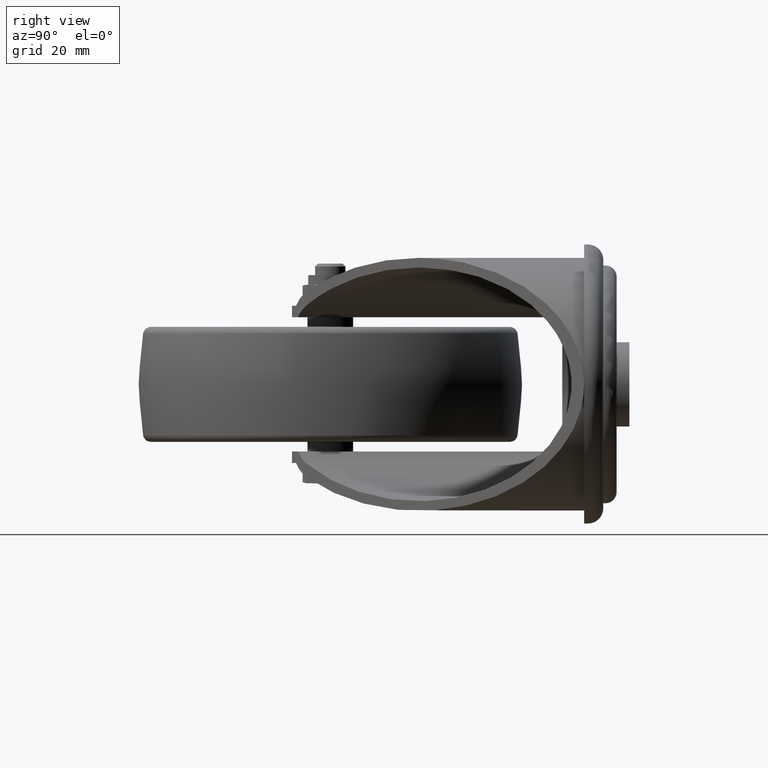
[diagram: clean part render]
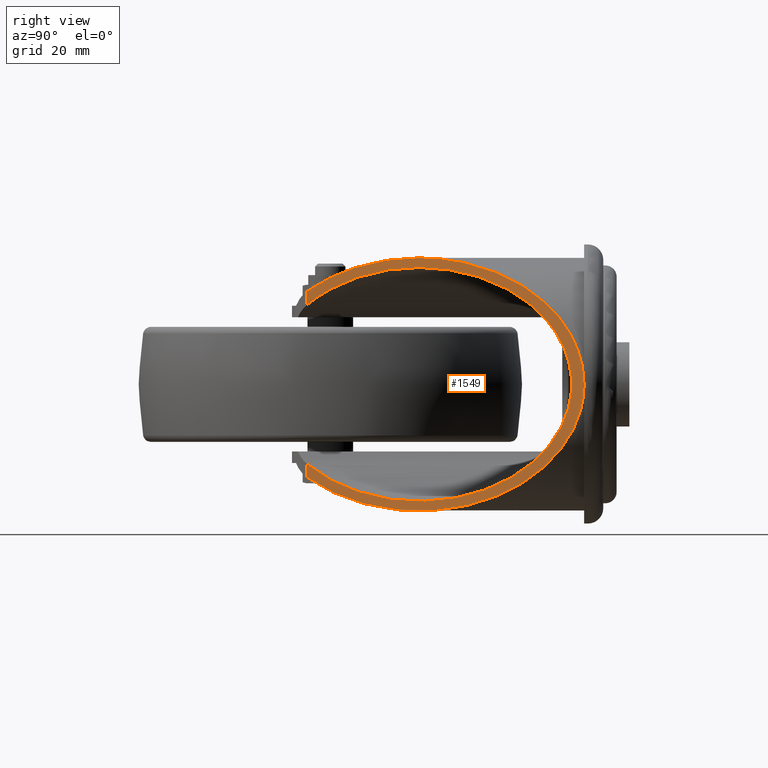
[diagram: same view with one face highlighted and labeled with its STEP entity id]
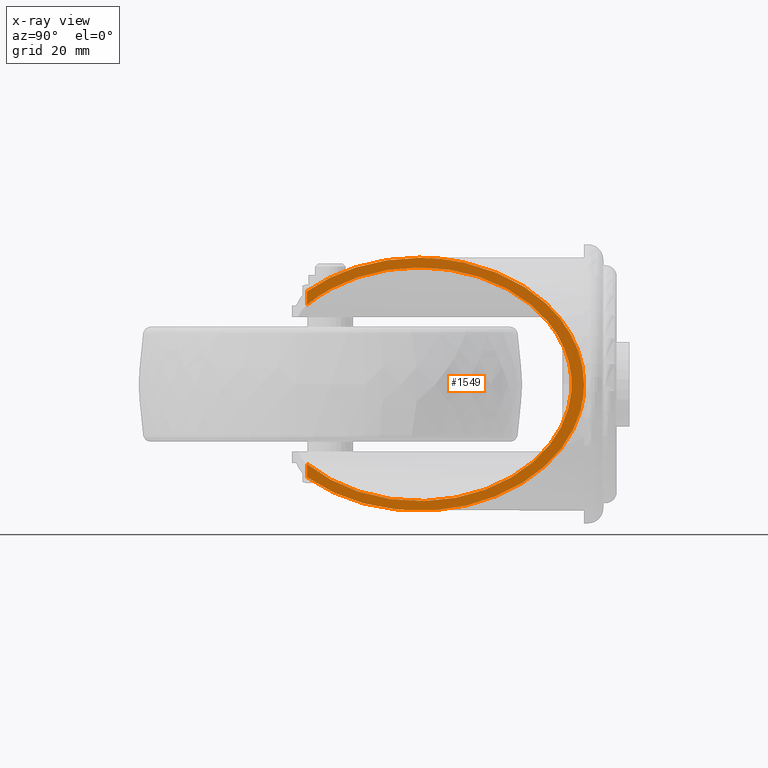
[diagram: x-ray of the same camera — body ghosted, the highlighted face saturated]
A machine part, right view. The second image highlights one B-rep face of the part: STEP entity #1549.
The next image is the same camera in x-ray: the body ghosted, the highlighted face saturated — about 0% of this face is hidden behind the body in this view.
In plain terms, the highlighted planar face has unit normal (0.7939, -0.6081, 0).
Its self-contained STEP definition (entity closure, byte-faithful):
#180=PLANE('',#1797);
#238=FACE_OUTER_BOUND('',#350,.T.);
#350=EDGE_LOOP('',(#1159,#1160,#1161,#1162,#1163,#1164,#1165));
#553=ELLIPSE('',#1744,54.2711679404773,33.);
#554=ELLIPSE('',#1764,50.1597158237745,30.5);
#555=ELLIPSE('',#1766,50.1597158237745,30.5);
#556=ELLIPSE('',#1769,54.2711679404773,33.);
#557=ELLIPSE('',#1771,54.2711679404773,33.);
#560=LINE('',#2501,#624);
#561=LINE('',#2520,#625);
#624=VECTOR('',#1982,1000.);
#625=VECTOR('',#1987,1000.);
#686=VERTEX_POINT('',#2477);
#688=VERTEX_POINT('',#2480);
#693=VERTEX_POINT('',#2491);
#694=VERTEX_POINT('',#2500);
#697=VERTEX_POINT('',#2512);
#698=VERTEX_POINT('',#2519);
#714=VERTEX_POINT('',#2572);
#826=EDGE_CURVE('',#688,#686,#553,.T.);
#832=EDGE_CURVE('',#694,#693,#560,.T.);
#836=EDGE_CURVE('',#698,#697,#561,.T.);
#860=EDGE_CURVE('',#697,#714,#554,.F.);
#864=EDGE_CURVE('',#714,#694,#555,.F.);
#866=EDGE_CURVE('',#693,#688,#556,.T.);
#870=EDGE_CURVE('',#686,#698,#557,.T.);
#1159=ORIENTED_EDGE('',*,*,#836,.T.);
#1160=ORIENTED_EDGE('',*,*,#860,.T.);
#1161=ORIENTED_EDGE('',*,*,#864,.T.);
#1162=ORIENTED_EDGE('',*,*,#832,.T.);
#1163=ORIENTED_EDGE('',*,*,#866,.T.);
#1164=ORIENTED_EDGE('',*,*,#826,.T.);
#1165=ORIENTED_EDGE('',*,*,#870,.T.);
#1549=ADVANCED_FACE('',(#238),#180,.T.);
#1744=AXIS2_PLACEMENT_3D('',#2481,#1971,#1972);
#1764=AXIS2_PLACEMENT_3D('',#2574,#2030,#2031);
#1766=AXIS2_PLACEMENT_3D('',#2580,#2036,#2037);
#1769=AXIS2_PLACEMENT_3D('',#2583,#2042,#2043);
#1771=AXIS2_PLACEMENT_3D('',#2589,#2048,#2049);
#1797=AXIS2_PLACEMENT_3D('',#2636,#2108,#2109);
#1971=DIRECTION('center_axis',(0.79389285693816,-0.608057671362319,0.));
#1972=DIRECTION('ref_axis',(-0.608057671362319,-0.79389285693816,0.));
#1982=DIRECTION('',(0.,0.,-1.));
#1987=DIRECTION('',(0.,0.,-1.));
#2030=DIRECTION('center_axis',(0.79389285693816,-0.608057671362319,0.));
#2031=DIRECTION('ref_axis',(-0.608057671362319,-0.79389285693816,0.));
#2036=DIRECTION('center_axis',(0.79389285693816,-0.608057671362319,0.));
#2037=DIRECTION('ref_axis',(-0.608057671362319,-0.79389285693816,0.));
#2042=DIRECTION('center_axis',(0.79389285693816,-0.608057671362319,0.));
#2043=DIRECTION('ref_axis',(-0.608057671362319,-0.79389285693816,0.));
#2048=DIRECTION('center_axis',(0.79389285693816,-0.608057671362319,0.));
#2049=DIRECTION('ref_axis',(-0.608057671362319,-0.79389285693816,0.));
#2108=DIRECTION('center_axis',(0.79389285693816,-0.608057671362319,0.));
#2109=DIRECTION('ref_axis',(0.608057671362319,0.79389285693816,0.));
#2477=CARTESIAN_POINT('',(35.,23.1145074343638,33.));
#2480=CARTESIAN_POINT('',(68.,66.2,0.));
#2481=CARTESIAN_POINT('Origin',(35.,23.1145074343638,0.));
#2491=CARTESIAN_POINT('',(12.6389285693816,-6.08057671362318,-24.2689613390186));
#2500=CARTESIAN_POINT('',(12.6389285693816,-6.08057671362318,-20.7420462942975));
#2501=CARTESIAN_POINT('',(12.6389285693816,-6.08057671362318,100.));
#2512=CARTESIAN_POINT('',(12.6389285693816,-6.08057671362318,20.7420462942975));
#2519=CARTESIAN_POINT('',(12.6389285693816,-6.08057671362318,24.2689613390186));
#2520=CARTESIAN_POINT('',(12.6389285693816,-6.08057671362318,100.));
#2572=CARTESIAN_POINT('',(35.,23.1145074343638,30.5));
#2574=CARTESIAN_POINT('Origin',(35.,23.1145074343638,0.));
#2580=CARTESIAN_POINT('Origin',(35.,23.1145074343638,0.));
#2583=CARTESIAN_POINT('Origin',(35.,23.1145074343638,0.));
#2589=CARTESIAN_POINT('Origin',(35.,23.1145074343638,0.));
#2636=CARTESIAN_POINT('Origin',(68.,66.2,100.));